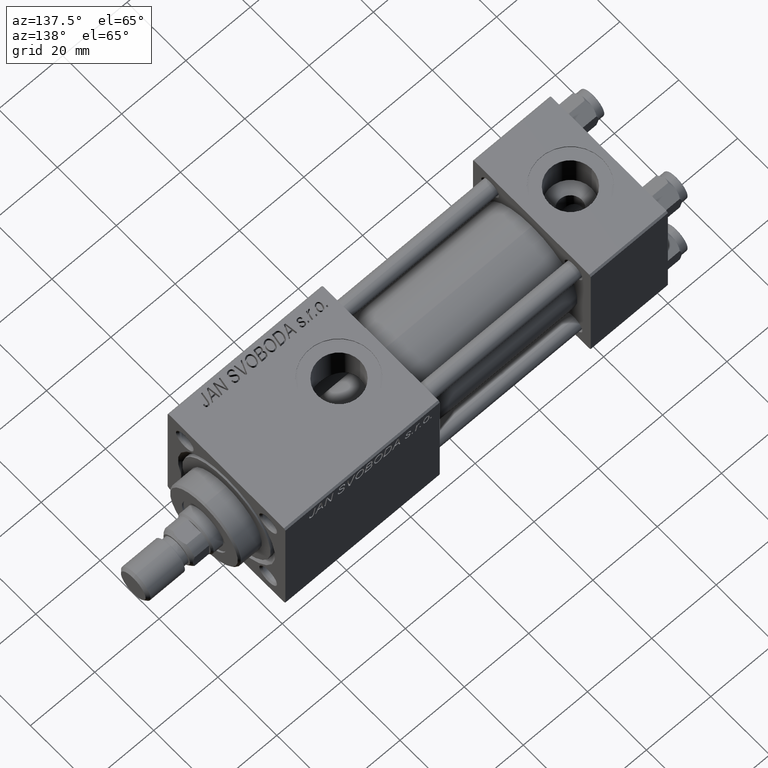
[diagram: clean part render]
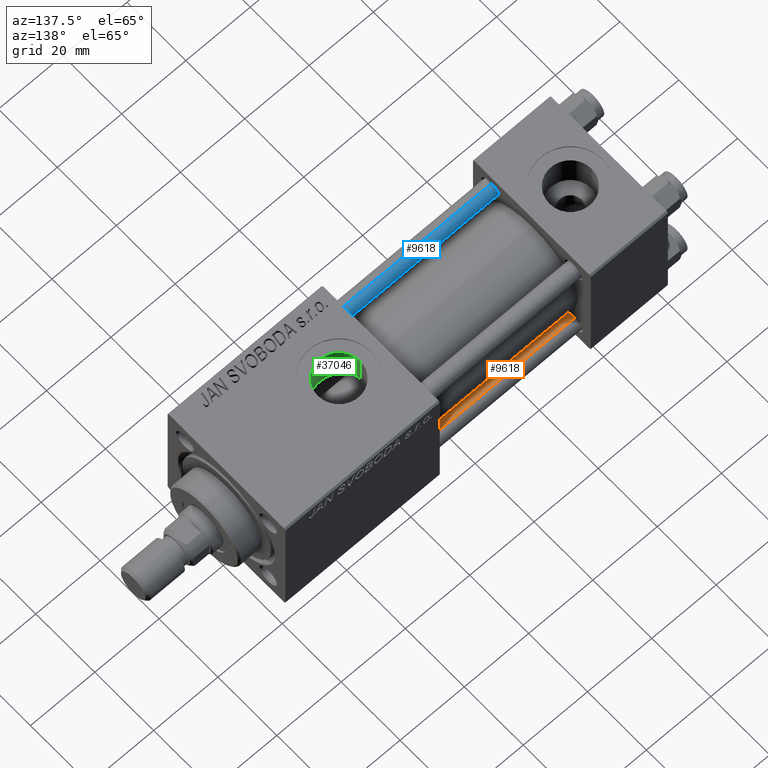
[diagram: same view with three faces highlighted in distinct colors, each labeled with its STEP entity id]
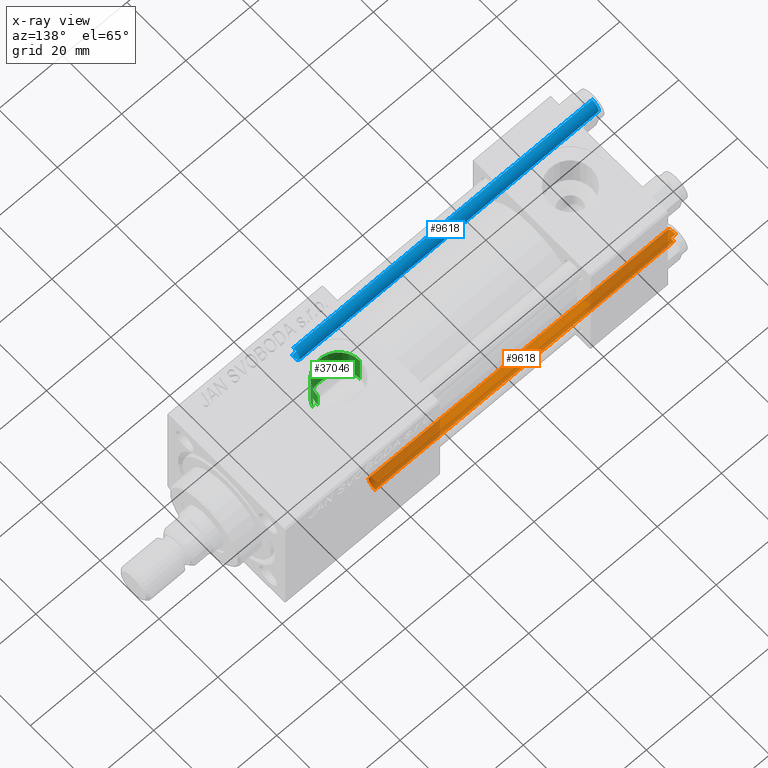
[diagram: x-ray of the same camera — body ghosted, the three highlighted faces saturated]
A machine part, auxiliary view with three faces highlighted in distinct colors.
The next image is the same camera in x-ray (body ghosted, the three faces saturated) — at least one of them is partly hidden behind the body in this view.
Their STEP definitions:

[orange] entity #9618 — the highlighted cylindrical surface (edge-blend (fillet) strip) has radius 2.5 mm, axis along (1, -0, 0).
#317 = EDGE_LOOP ( 'NONE', ( #3369, #47860, #39322, #41173 ) ) ;
#3369 = ORIENTED_EDGE ( 'NONE', *, *, #46170, .F. ) ;
#5073 = CARTESIAN_POINT ( 'NONE',  ( -2.500000000000000000, 0.000000000000000000, 0.5000000000000004441 ) ) ;
#5731 = CARTESIAN_POINT ( 'NONE',  ( -2.500000000000000000, 0.000000000000000000, 94.00000000000000000 ) ) ;
#6731 = AXIS2_PLACEMENT_3D ( 'NONE', #38943, #34945, #51176 ) ;
#7476 = LINE ( 'NONE', #5731, #30904 ) ;
#8738 = CARTESIAN_POINT ( 'NONE',  ( 2.500000000000000000, 3.061616997868383141E-16, 0.5000000000000004441 ) ) ;
#8813 = CARTESIAN_POINT ( 'NONE',  ( 0.000000000000000000, 0.000000000000000000, 94.00000000000000000 ) ) ;
#9262 = VERTEX_POINT ( 'NONE', #8738 ) ;
#9618 = ADVANCED_FACE ( 'NONE', ( #36739 ), #25532, .T. ) ;
#10048 = AXIS2_PLACEMENT_3D ( 'NONE', #35405, #42612, #10685 ) ;
#10685 = DIRECTION ( 'NONE',  ( 1.000000000000000000, 0.000000000000000000, 0.000000000000000000 ) ) ;
#13053 = DIRECTION ( 'NONE',  ( -1.000000000000000000, 0.000000000000000000, 0.000000000000000000 ) ) ;
#13353 = DIRECTION ( 'NONE',  ( -0.000000000000000000, -0.000000000000000000, -1.000000000000000000 ) ) ;
#15365 = CARTESIAN_POINT ( 'NONE',  ( 2.500000000000000000, 3.061616997868383141E-16, 93.50000000000001421 ) ) ;
#15566 = CARTESIAN_POINT ( 'NONE',  ( 2.500000000000000000, 3.061616997868383141E-16, 94.00000000000000000 ) ) ;
#15825 = LINE ( 'NONE', #15566, #26496 ) ;
#17264 = EDGE_CURVE ( 'NONE', #45914, #41821, #37220, .T. ) ;
#19248 = EDGE_CURVE ( 'NONE', #29856, #9262, #48339, .T. ) ;
#21794 = AXIS2_PLACEMENT_3D ( 'NONE', #8813, #49512, #13053 ) ;
#25532 = CYLINDRICAL_SURFACE ( 'NONE', #21794, 2.500000000000000000 ) ;
#26299 = CARTESIAN_POINT ( 'NONE',  ( -2.500000000000000000, 0.000000000000000000, 93.50000000000001421 ) ) ;
#26496 = VECTOR ( 'NONE', #13353, 1000.000000000000000 ) ;
#29856 = VERTEX_POINT ( 'NONE', #5073 ) ;
#30904 = VECTOR ( 'NONE', #38453, 1000.000000000000000 ) ;
#34945 = DIRECTION ( 'NONE',  ( -0.000000000000000000, -0.000000000000000000, 1.000000000000000000 ) ) ;
#35405 = CARTESIAN_POINT ( 'NONE',  ( 0.000000000000000000, 0.000000000000000000, 93.50000000000001421 ) ) ;
#36739 = FACE_OUTER_BOUND ( 'NONE', #317, .T. ) ;
#37220 = CIRCLE ( 'NONE', #10048, 2.500000000000000000 ) ;
#38453 = DIRECTION ( 'NONE',  ( -0.000000000000000000, -0.000000000000000000, -1.000000000000000000 ) ) ;
#38943 = CARTESIAN_POINT ( 'NONE',  ( 0.000000000000000000, 0.000000000000000000, 0.5000000000000004441 ) ) ;
#39322 = ORIENTED_EDGE ( 'NONE', *, *, #50144, .T. ) ;
#41173 = ORIENTED_EDGE ( 'NONE', *, *, #19248, .T. ) ;
#41821 = VERTEX_POINT ( 'NONE', #26299 ) ;
#42612 = DIRECTION ( 'NONE',  ( 0.000000000000000000, 0.000000000000000000, -1.000000000000000000 ) ) ;
#45914 = VERTEX_POINT ( 'NONE', #15365 ) ;
#46170 = EDGE_CURVE ( 'NONE', #45914, #9262, #15825, .T. ) ;
#47860 = ORIENTED_EDGE ( 'NONE', *, *, #17264, .T. ) ;
#48339 = CIRCLE ( 'NONE', #6731, 2.500000000000000000 ) ;
#49512 = DIRECTION ( 'NONE',  ( -0.000000000000000000, -0.000000000000000000, -1.000000000000000000 ) ) ;
#50144 = EDGE_CURVE ( 'NONE', #41821, #29856, #7476, .T. ) ;
#51176 = DIRECTION ( 'NONE',  ( 1.000000000000000000, 0.000000000000000000, 0.000000000000000000 ) ) ;

[blue] entity #9618 — the highlighted cylindrical surface (edge-blend (fillet) strip) has radius 2.5 mm, axis along (1, 0, -0).
#317 = EDGE_LOOP ( 'NONE', ( #3369, #47860, #39322, #41173 ) ) ;
#3369 = ORIENTED_EDGE ( 'NONE', *, *, #46170, .F. ) ;
#5073 = CARTESIAN_POINT ( 'NONE',  ( -2.500000000000000000, 0.000000000000000000, 0.5000000000000004441 ) ) ;
#5731 = CARTESIAN_POINT ( 'NONE',  ( -2.500000000000000000, 0.000000000000000000, 94.00000000000000000 ) ) ;
#6731 = AXIS2_PLACEMENT_3D ( 'NONE', #38943, #34945, #51176 ) ;
#7476 = LINE ( 'NONE', #5731, #30904 ) ;
#8738 = CARTESIAN_POINT ( 'NONE',  ( 2.500000000000000000, 3.061616997868383141E-16, 0.5000000000000004441 ) ) ;
#8813 = CARTESIAN_POINT ( 'NONE',  ( 0.000000000000000000, 0.000000000000000000, 94.00000000000000000 ) ) ;
#9262 = VERTEX_POINT ( 'NONE', #8738 ) ;
#9618 = ADVANCED_FACE ( 'NONE', ( #36739 ), #25532, .T. ) ;
#10048 = AXIS2_PLACEMENT_3D ( 'NONE', #35405, #42612, #10685 ) ;
#10685 = DIRECTION ( 'NONE',  ( 1.000000000000000000, 0.000000000000000000, 0.000000000000000000 ) ) ;
#13053 = DIRECTION ( 'NONE',  ( -1.000000000000000000, 0.000000000000000000, 0.000000000000000000 ) ) ;
#13353 = DIRECTION ( 'NONE',  ( -0.000000000000000000, -0.000000000000000000, -1.000000000000000000 ) ) ;
#15365 = CARTESIAN_POINT ( 'NONE',  ( 2.500000000000000000, 3.061616997868383141E-16, 93.50000000000001421 ) ) ;
#15566 = CARTESIAN_POINT ( 'NONE',  ( 2.500000000000000000, 3.061616997868383141E-16, 94.00000000000000000 ) ) ;
#15825 = LINE ( 'NONE', #15566, #26496 ) ;
#17264 = EDGE_CURVE ( 'NONE', #45914, #41821, #37220, .T. ) ;
#19248 = EDGE_CURVE ( 'NONE', #29856, #9262, #48339, .T. ) ;
#21794 = AXIS2_PLACEMENT_3D ( 'NONE', #8813, #49512, #13053 ) ;
#25532 = CYLINDRICAL_SURFACE ( 'NONE', #21794, 2.500000000000000000 ) ;
#26299 = CARTESIAN_POINT ( 'NONE',  ( -2.500000000000000000, 0.000000000000000000, 93.50000000000001421 ) ) ;
#26496 = VECTOR ( 'NONE', #13353, 1000.000000000000000 ) ;
#29856 = VERTEX_POINT ( 'NONE', #5073 ) ;
#30904 = VECTOR ( 'NONE', #38453, 1000.000000000000000 ) ;
#34945 = DIRECTION ( 'NONE',  ( -0.000000000000000000, -0.000000000000000000, 1.000000000000000000 ) ) ;
#35405 = CARTESIAN_POINT ( 'NONE',  ( 0.000000000000000000, 0.000000000000000000, 93.50000000000001421 ) ) ;
#36739 = FACE_OUTER_BOUND ( 'NONE', #317, .T. ) ;
#37220 = CIRCLE ( 'NONE', #10048, 2.500000000000000000 ) ;
#38453 = DIRECTION ( 'NONE',  ( -0.000000000000000000, -0.000000000000000000, -1.000000000000000000 ) ) ;
#38943 = CARTESIAN_POINT ( 'NONE',  ( 0.000000000000000000, 0.000000000000000000, 0.5000000000000004441 ) ) ;
#39322 = ORIENTED_EDGE ( 'NONE', *, *, #50144, .T. ) ;
#41173 = ORIENTED_EDGE ( 'NONE', *, *, #19248, .T. ) ;
#41821 = VERTEX_POINT ( 'NONE', #26299 ) ;
#42612 = DIRECTION ( 'NONE',  ( 0.000000000000000000, 0.000000000000000000, -1.000000000000000000 ) ) ;
#45914 = VERTEX_POINT ( 'NONE', #15365 ) ;
#46170 = EDGE_CURVE ( 'NONE', #45914, #9262, #15825, .T. ) ;
#47860 = ORIENTED_EDGE ( 'NONE', *, *, #17264, .T. ) ;
#48339 = CIRCLE ( 'NONE', #6731, 2.500000000000000000 ) ;
#49512 = DIRECTION ( 'NONE',  ( -0.000000000000000000, -0.000000000000000000, -1.000000000000000000 ) ) ;
#50144 = EDGE_CURVE ( 'NONE', #41821, #29856, #7476, .T. ) ;
#51176 = DIRECTION ( 'NONE',  ( 1.000000000000000000, 0.000000000000000000, 0.000000000000000000 ) ) ;

[green] entity #37046 — the highlighted cylindrical surface (edge-blend (fillet) strip) has radius 6.58 mm, axis along (0, 0, -1).
#807 = CARTESIAN_POINT ( 'NONE',  ( 90.30000000000001137, -1.899052395280420136, 14.87930105885285670 ) ) ;
#873 = VERTEX_POINT ( 'NONE', #49056 ) ;
#2215 = CARTESIAN_POINT ( 'NONE',  ( 87.74050804270864035, -5.416766998257490862, 8.406790300727948306 ) ) ;
#2996 = CARTESIAN_POINT ( 'NONE',  ( 81.15150766959031614, -5.943877247083126925, 8.044991576418468071 ) ) ;
#3051 = CARTESIAN_POINT ( 'NONE',  ( 90.30000000000001137, -1.899052395280420136, 9.818024241158690657 ) ) ;
#3253 = CARTESIAN_POINT ( 'NONE',  ( 83.23563096081821300, -6.538530929802691460, 7.566314066596407706 ) ) ;
#3609 = ORIENTED_EDGE ( 'NONE', *, *, #38926, .F. ) ;
#5981 = CARTESIAN_POINT ( 'NONE',  ( 77.41999999999846693, -1.734723475976806897E-15, 42.80000000000000426 ) ) ;
#6988 = CARTESIAN_POINT ( 'NONE',  ( 78.91948560029506154, -4.185857250486422210, 9.083179932574980242 ) ) ;
#7247 = CARTESIAN_POINT ( 'NONE',  ( 84.04743762832036680, -6.582974628388996940, 7.527585999843090292 ) ) ;
#9677 = CARTESIAN_POINT ( 'NONE',  ( 90.30000000000001137, -1.899052395280420136, 9.818024241158690657 ) ) ;
#10465 = CARTESIAN_POINT ( 'NONE',  ( 86.92434068310684836, -5.907044672534588869, 8.071096920454994716 ) ) ;
#10983 = CARTESIAN_POINT ( 'NONE',  ( 84.65744280686338641, -6.559709605006789346, 7.547889352008899877 ) ) ;
#11248 = CARTESIAN_POINT ( 'NONE',  ( 78.57242859662287060, -3.724876030303978069, 9.281895439158068584 ) ) ;
#11828 = DIRECTION ( 'NONE',  ( 0.000000000000000000, 0.000000000000000000, -1.000000000000000000 ) ) ;
#12036 = LINE ( 'NONE', #39981, #29225 ) ;
#13662 = VECTOR ( 'NONE', #29647, 1000.000000000000000 ) ;
#13855 = EDGE_CURVE ( 'NONE', #47757, #31315, #30583, .T. ) ;
#13927 = CARTESIAN_POINT ( 'NONE',  ( 90.18384735178129574, -2.284382302762963501, 9.743491762341799145 ) ) ;
#14304 = VERTEX_POINT ( 'NONE', #45581 ) ;
#14449 = CARTESIAN_POINT ( 'NONE',  ( 89.01171256368644435, -4.281038711601321545, 9.043476487246550732 ) ) ;
#15226 = CARTESIAN_POINT ( 'NONE',  ( 88.34134544482054707, -4.948221379670047604, 8.691185487698470880 ) ) ;
#15485 = CARTESIAN_POINT ( 'NONE',  ( 77.56705469300284506, -1.397686090543303283, 9.903818455115036556 ) ) ;
#18295 = EDGE_CURVE ( 'NONE', #34806, #14304, #25911, .T. ) ;
#18432 = CARTESIAN_POINT ( 'NONE',  ( 83.43610688730976221, -6.558932760434257325, 7.548550817887899278 ) ) ;
#18941 = CARTESIAN_POINT ( 'NONE',  ( 80.48004077057568395, -5.572564248888139282, 8.306509127488531874 ) ) ;
#19205 = CARTESIAN_POINT ( 'NONE',  ( 79.57031396582577543, -4.880372653833860319, 8.732632965334568453 ) ) ;
#19461 = CARTESIAN_POINT ( 'NONE',  ( 86.21002104074251804, -6.200884946022790167, 7.845702732414576275 ) ) ;
#19647 = LINE ( 'NONE', #27126, #29262 ) ;
#21008 = CARTESIAN_POINT ( 'NONE',  ( 90.58000000000156149, -0.3230844264541308797, 14.99999999999999822 ) ) ;
#21570 = DIRECTION ( 'NONE',  ( -1.000000000000000000, 0.000000000000000000, 0.000000000000000000 ) ) ;
#22163 = AXIS2_PLACEMENT_3D ( 'NONE', #45696, #25452, #29990 ) ;
#22178 = ORIENTED_EDGE ( 'NONE', *, *, #13855, .T. ) ;
#22425 = CARTESIAN_POINT ( 'NONE',  ( 78.79875737437667738, -4.034886358906389248, 9.151392050136836431 ) ) ;
#22940 = CARTESIAN_POINT ( 'NONE',  ( 77.41999999999848114, -0.4081853129699585803, 10.00000000000000711 ) ) ;
#23199 = CARTESIAN_POINT ( 'NONE',  ( 78.46622740148208663, -3.565203004854784474, 9.344512687240586146 ) ) ;
#23462 = CARTESIAN_POINT ( 'NONE',  ( 77.78468472322818172, -2.169203254887546617, 9.763745855050723677 ) ) ;
#23733 = AXIS2_PLACEMENT_3D ( 'NONE', #24844, #11828, #21570 ) ;
#24844 = CARTESIAN_POINT ( 'NONE',  ( 84.00000000000000000, -1.734723475976806897E-15, 42.80000000000000426 ) ) ;
#25452 = DIRECTION ( 'NONE',  ( -0.000000000000000000, -0.000000000000000000, -1.000000000000000000 ) ) ;
#25911 = B_SPLINE_CURVE_WITH_KNOTS ( 'NONE', 3,
 ( #9677, #13927, #30161, #26156, #42388, #14449, #43702, #15226, #26685, #39449, #2215, #31459, #10465, #26412, #19461, #30940, #27198, #51422, #10983, #7247, #38672, #18432, #3253, #42657, #47686, #35705, #38931, #51931, #2996, #18941, #26944, #19205, #43435, #6988, #22425, #11248, #23199, #35456, #39185, #23462, #30675, #51675, #15485, #46644, #22940, #39716 ),
 .UNSPECIFIED., .F., .F.,
 ( 4, 2, 2, 2, 2, 2, 2, 2, 2, 2, 2, 2, 2, 2, 2, 2, 2, 2, 2, 2, 2, 2, 4 ),
 ( 0.000000000000000000, 0.001207791230099372441, 0.002415582460198744882, 0.003623373690298115155, 0.004227269305347786631, 0.004831164920397457672, 0.006038956150496800623, 0.006642851765546489880, 0.007246747380596180003, 0.008454538610695601017, 0.009058434225745329305, 0.009662329840795061062, 0.01026622545584479108, 0.01087012107089451937, 0.01207791230099397942, 0.01328570353109343946, 0.01449349476119290124, 0.01509739037624264514, 0.01570128599129239078, 0.01690907722139185429, 0.01751297283644158778, 0.01811686845149132127, 0.01932465968159079173 ),
 .UNSPECIFIED. ) ;
#26031 = CARTESIAN_POINT ( 'NONE',  ( 90.30000000000001137, -1.899052395280420136, 14.87930105885285670 ) ) ;
#26156 = CARTESIAN_POINT ( 'NONE',  ( 89.68316260257665817, -3.338928794743214468, 9.433056230293079381 ) ) ;
#26412 = CARTESIAN_POINT ( 'NONE',  ( 86.39211994537743067, -6.132805105780794186, 7.899218132206713427 ) ) ;
#26685 = CARTESIAN_POINT ( 'NONE',  ( 88.19718467613775204, -5.071121963172631197, 8.619888602053425330 ) ) ;
#26944 = CARTESIAN_POINT ( 'NONE',  ( 80.16020215073048405, -5.356874842517142632, 8.448716332623810388 ) ) ;
#27126 = CARTESIAN_POINT ( 'NONE',  ( 90.58000000000154728, -9.289058821376597120E-16, 42.80000000000000426 ) ) ;
#27198 = CARTESIAN_POINT ( 'NONE',  ( 85.64143006621837628, -6.375121249720390182, 7.704616833470068649 ) ) ;
#27834 = EDGE_LOOP ( 'NONE', ( #50379, #51995, #22178, #37676, #29266, #3609 ) ) ;
#28064 = CIRCLE ( 'NONE', #22163, 6.580000000001542837 ) ;
#29225 = VECTOR ( 'NONE', #44494, 1000.000000000000000 ) ;
#29262 = VECTOR ( 'NONE', #35126, 1000.000000000000000 ) ;
#29266 = ORIENTED_EDGE ( 'NONE', *, *, #18295, .T. ) ;
#29361 = VERTEX_POINT ( 'NONE', #42442 ) ;
#29647 = DIRECTION ( 'NONE',  ( 0.000000000000000000, 0.000000000000000000, -1.000000000000000000 ) ) ;
#29923 = LINE ( 'NONE', #5981, #13662 ) ;
#29990 = DIRECTION ( 'NONE',  ( 1.000000000000000000, 0.000000000000000000, 0.000000000000000000 ) ) ;
#30161 = CARTESIAN_POINT ( 'NONE',  ( 90.03601729897108896, -2.648259396322893089, 9.649752199410302822 ) ) ;
#30583 = B_SPLINE_CURVE_WITH_KNOTS ( 'NONE', 3,
 ( #41512, #21008, #33537, #37260, #49770, #807 ),
 .UNSPECIFIED., .F., .F.,
 ( 4, 2, 4 ),
 ( 0.001923267627926015643, 0.002881828648815649985, 0.003840389669705283893 ),
 .UNSPECIFIED. ) ;
#30675 = CARTESIAN_POINT ( 'NONE',  ( 77.72104259078042787, -1.977670684214428043, 9.804446867313098224 ) ) ;
#30940 = CARTESIAN_POINT ( 'NONE',  ( 85.83530013697877337, -6.321933289868085559, 7.748495657718812879 ) ) ;
#31315 = VERTEX_POINT ( 'NONE', #26031 ) ;
#31459 = CARTESIAN_POINT ( 'NONE',  ( 87.26053252520590320, -5.728070196491263921, 8.200680661955367157 ) ) ;
#32583 = FACE_OUTER_BOUND ( 'NONE', #27834, .T. ) ;
#33537 = CARTESIAN_POINT ( 'NONE',  ( 90.55605924908761040, -0.6456608678150235203, 14.98945420583744870 ) ) ;
#33688 = EDGE_CURVE ( 'NONE', #34806, #31315, #12036, .T. ) ;
#34806 = VERTEX_POINT ( 'NONE', #3051 ) ;
#35126 = DIRECTION ( 'NONE',  ( 0.000000000000000000, 0.000000000000000000, -1.000000000000000000 ) ) ;
#35424 = EDGE_CURVE ( 'NONE', #29361, #47757, #19647, .T. ) ;
#35456 = CARTESIAN_POINT ( 'NONE',  ( 78.16834223545102134, -3.071777053897142729, 9.522948337697433985 ) ) ;
#35705 = CARTESIAN_POINT ( 'NONE',  ( 82.25327158685063011, -6.347078162380216604, 7.727766182684421281 ) ) ;
#37046 = ADVANCED_FACE ( 'NONE', ( #32583 ), #37826, .F. ) ;
#37260 = CARTESIAN_POINT ( 'NONE',  ( 90.46247493449395449, -1.278752734038846484, 14.94875937294843737 ) ) ;
#37676 = ORIENTED_EDGE ( 'NONE', *, *, #33688, .F. ) ;
#37826 = CYLINDRICAL_SURFACE ( 'NONE', #23733, 6.580000000001542837 ) ;
#38672 = CARTESIAN_POINT ( 'NONE',  ( 83.84132420776212768, -6.581215419008478840, 7.529131557805247787 ) ) ;
#38926 = EDGE_CURVE ( 'NONE', #873, #14304, #29923, .T. ) ;
#38931 = CARTESIAN_POINT ( 'NONE',  ( 82.06128195139868353, -6.290973204691355569, 7.773687993804112573 ) ) ;
#39185 = CARTESIAN_POINT ( 'NONE',  ( 77.99714712711040931, -2.723766581249583485, 9.629423614267258458 ) ) ;
#39449 = CARTESIAN_POINT ( 'NONE',  ( 87.89699318866286148, -5.305288046703262594, 8.477775428654018341 ) ) ;
#39572 = EDGE_CURVE ( 'NONE', #29361, #873, #28064, .T. ) ;
#39716 = CARTESIAN_POINT ( 'NONE',  ( 77.41999999999846693, 1.225496641077837722E-15, 9.999999999999998224 ) ) ;
#39981 = CARTESIAN_POINT ( 'NONE',  ( 90.30000000000001137, -1.899052395280420136, 42.80000000000000426 ) ) ;
#41512 = CARTESIAN_POINT ( 'NONE',  ( 90.58000000000154728, 1.836897619300433381E-15, 15.00000000000000000 ) ) ;
#42388 = CARTESIAN_POINT ( 'NONE',  ( 89.47667727346387778, -3.667500690329295931, 9.309199649381490360 ) ) ;
#42442 = CARTESIAN_POINT ( 'NONE',  ( 90.58000000000154728, -9.289058821376599092E-16, 19.80000000000000071 ) ) ;
#42657 = CARTESIAN_POINT ( 'NONE',  ( 82.83871781191031403, -6.479820246555592966, 7.616654439233103702 ) ) ;
#43435 = CARTESIAN_POINT ( 'NONE',  ( 79.29730408322323854, -4.618177244596259889, 8.875509752877485781 ) ) ;
#43702 = CARTESIAN_POINT ( 'NONE',  ( 88.75695250607545006, -4.561896889324866144, 8.903678834413629062 ) ) ;
#44494 = DIRECTION ( 'NONE',  ( -0.000000000000000000, -0.000000000000000000, 1.000000000000000000 ) ) ;
#45581 = CARTESIAN_POINT ( 'NONE',  ( 77.41999999999846693, 1.225496641077837722E-15, 9.999999999999998224 ) ) ;
#45696 = CARTESIAN_POINT ( 'NONE',  ( 84.00000000000000000, -1.734723475976806897E-15, 19.80000000000000071 ) ) ;
#46644 = CARTESIAN_POINT ( 'NONE',  ( 77.45763783829498550, -0.8084208477571691587, 9.975121118623741623 ) ) ;
#47686 = CARTESIAN_POINT ( 'NONE',  ( 82.64228046384747017, -6.441510615516904181, 7.649229527461429257 ) ) ;
#47757 = VERTEX_POINT ( 'NONE', #52561 ) ;
#49056 = CARTESIAN_POINT ( 'NONE',  ( 77.41999999999846693, -1.734723475976806897E-15, 19.80000000000000071 ) ) ;
#49770 = CARTESIAN_POINT ( 'NONE',  ( 90.39284622331669539, -1.591040247564623700, 14.91861279833453757 ) ) ;
#50379 = ORIENTED_EDGE ( 'NONE', *, *, #39572, .F. ) ;
#51422 = CARTESIAN_POINT ( 'NONE',  ( 85.05563542025694801, -6.507095227759212008, 7.594134426896898660 ) ) ;
#51675 = CARTESIAN_POINT ( 'NONE',  ( 77.61241581301695192, -1.592248641449762747, 9.874366003595781649 ) ) ;
#51931 = CARTESIAN_POINT ( 'NONE',  ( 81.50365122394816808, -6.100731835174567408, 7.925108619061488113 ) ) ;
#51995 = ORIENTED_EDGE ( 'NONE', *, *, #35424, .T. ) ;
#52561 = CARTESIAN_POINT ( 'NONE',  ( 90.58000000000154728, 1.836897619300433381E-15, 15.00000000000000000 ) ) ;